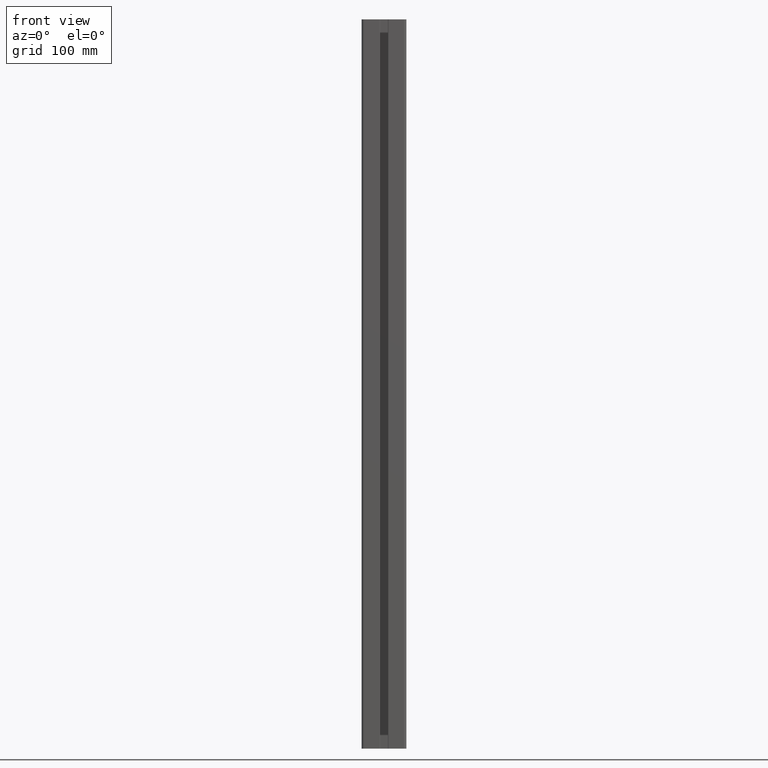
[diagram: clean part render]
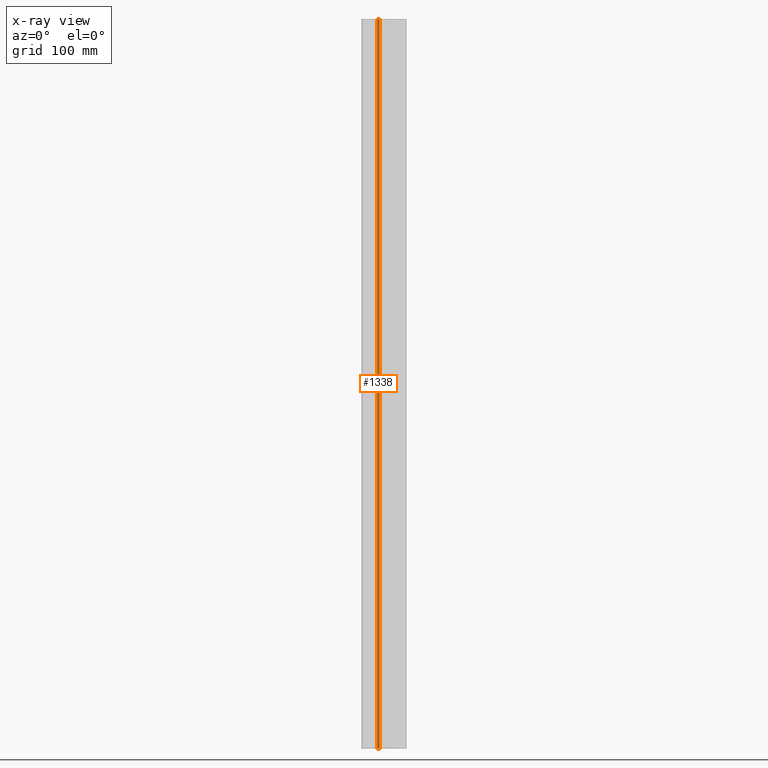
[diagram: x-ray — body ghosted, one internal face saturated and labeled with its STEP entity id]
A machine part, front view, then the same camera in x-ray: the body is ghosted and one INTERNAL B-rep face — a face not visible from any outside direction — is saturated and labeled: STEP entity #1338.
In plain terms, the highlighted planar face has unit normal (0, -1, 0).
Its self-contained STEP definition (entity closure, byte-faithful):
#131=FACE_OUTER_BOUND('',#200,.T.);
#200=EDGE_LOOP('',(#965,#966,#967,#968));
#302=LINE('',#2077,#445);
#303=LINE('',#2080,#446);
#304=LINE('',#2082,#447);
#305=LINE('',#2083,#448);
#445=VECTOR('',#1672,10.);
#446=VECTOR('',#1675,10.);
#447=VECTOR('',#1676,10.);
#448=VECTOR('',#1677,10.);
#586=VERTEX_POINT('',#2073);
#587=VERTEX_POINT('',#2075);
#588=VERTEX_POINT('',#2079);
#589=VERTEX_POINT('',#2081);
#742=EDGE_CURVE('',#587,#586,#302,.T.);
#743=EDGE_CURVE('',#586,#588,#303,.T.);
#744=EDGE_CURVE('',#589,#587,#304,.T.);
#745=EDGE_CURVE('',#589,#588,#305,.T.);
#965=ORIENTED_EDGE('',*,*,#743,.F.);
#966=ORIENTED_EDGE('',*,*,#742,.F.);
#967=ORIENTED_EDGE('',*,*,#744,.F.);
#968=ORIENTED_EDGE('',*,*,#745,.T.);
#1288=PLANE('',#1450);
#1338=ADVANCED_FACE('',(#131),#1288,.F.);
#1450=AXIS2_PLACEMENT_3D('',#2078,#1673,#1674);
#1672=DIRECTION('',(0.,0.,1.));
#1673=DIRECTION('center_axis',(0.,-1.,0.));
#1674=DIRECTION('ref_axis',(0.,0.,-1.));
#1675=DIRECTION('',(-1.,0.,0.));
#1676=DIRECTION('',(1.,0.,0.));
#1677=DIRECTION('',(0.,0.,1.));
#2073=CARTESIAN_POINT('',(-4.45000000000001,-18.2,732.));
#2075=CARTESIAN_POINT('',(-4.45000000000001,-18.2,0.));
#2077=CARTESIAN_POINT('',(-4.45000000000001,-18.2,0.));
#2078=CARTESIAN_POINT('Origin',(-4.45000000000001,-18.2,0.));
#2079=CARTESIAN_POINT('',(-6.9,-18.2,732.));
#2080=CARTESIAN_POINT('',(-2.225,-18.2,732.));
#2081=CARTESIAN_POINT('',(-6.9,-18.2,0.));
#2082=CARTESIAN_POINT('',(-2.225,-18.2,0.));
#2083=CARTESIAN_POINT('',(-6.9,-18.2,0.));